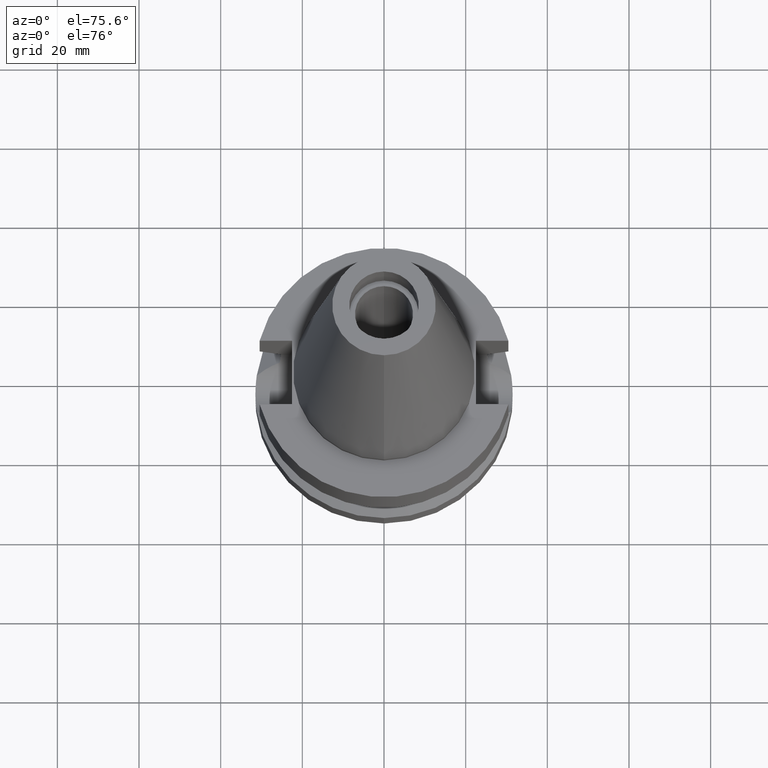
[diagram: clean part render]
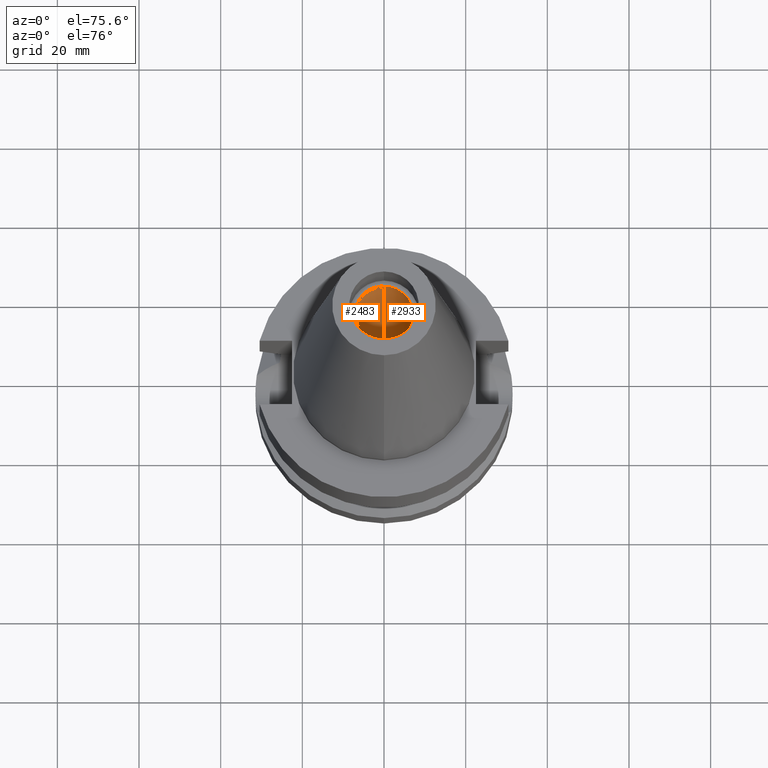
[diagram: same view with one multi-face feature highlighted, each face labeled with its STEP entity id]
A machine part, auxiliary view. The highlighted faces form ONE feature: a constant-radius fillet chain: 2 tangent blend faces with common blend radius 7.1 mm. The faces share edges in the B-rep.
Their STEP definitions:
[1] entity #2483 (Cylinder):
#290 = ORIENTED_EDGE ( 'NONE', *, *, #2376, .T. ) ;
#316 = AXIS2_PLACEMENT_3D ( 'NONE', #1564, #877, #1807 ) ;
#545 = DIRECTION ( 'NONE',  ( 0.0000000000000000000, 0.0000000000000000000, -1.000000000000000000 ) ) ;
#569 = VECTOR ( 'NONE', #2700, 1000.000000000000000 ) ;
#615 = VERTEX_POINT ( 'NONE', #3017 ) ;
#731 = LINE ( 'NONE', #1941, #1014 ) ;
#877 = DIRECTION ( 'NONE',  ( 0.0000000000000000000, 0.0000000000000000000, -1.000000000000000000 ) ) ;
#881 = CARTESIAN_POINT ( 'NONE',  ( 0.0000000000000000000, 0.0000000000000000000, 56.39999999999999858 ) ) ;
#965 = AXIS2_PLACEMENT_3D ( 'NONE', #881, #3049, #2324 ) ;
#1003 = CARTESIAN_POINT ( 'NONE',  ( 0.0000000000000000000, 7.100000000000000533, 0.0000000000000000000 ) ) ;
#1014 = VECTOR ( 'NONE', #2955, 1000.000000000000000 ) ;
#1091 = EDGE_CURVE ( 'NONE', #2235, #615, #731, .T. ) ;
#1235 = EDGE_LOOP ( 'NONE', ( #2120, #1664, #1840, #290 ) ) ;
#1245 = CARTESIAN_POINT ( 'NONE',  ( 0.0000000000000000000, 7.100000000000000533, 0.0000000000000000000 ) ) ;
#1251 = EDGE_CURVE ( 'NONE', #2235, #2464, #1837, .T. ) ;
#1279 = AXIS2_PLACEMENT_3D ( 'NONE', #1298, #545, #1998 ) ;
#1298 = CARTESIAN_POINT ( 'NONE',  ( 0.0000000000000000000, 0.0000000000000000000, 0.0000000000000000000 ) ) ;
#1499 = EDGE_CURVE ( 'NONE', #2511, #615, #1521, .T. ) ;
#1521 = CIRCLE ( 'NONE', #965, 7.100000000000000533 ) ;
#1564 = CARTESIAN_POINT ( 'NONE',  ( 0.0000000000000000000, 0.0000000000000000000, 0.0000000000000000000 ) ) ;
#1664 = ORIENTED_EDGE ( 'NONE', *, *, #1091, .F. ) ;
#1709 = LINE ( 'NONE', #1003, #569 ) ;
#1807 = DIRECTION ( 'NONE',  ( 0.0000000000000000000, -1.000000000000000000, 0.0000000000000000000 ) ) ;
#1837 = CIRCLE ( 'NONE', #1279, 7.100000000000000533 ) ;
#1840 = ORIENTED_EDGE ( 'NONE', *, *, #1251, .T. ) ;
#1941 = CARTESIAN_POINT ( 'NONE',  ( 0.0000000000000000000, -7.100000000000000533, 0.0000000000000000000 ) ) ;
#1998 = DIRECTION ( 'NONE',  ( 0.0000000000000000000, -1.000000000000000000, 0.0000000000000000000 ) ) ;
#2120 = ORIENTED_EDGE ( 'NONE', *, *, #1499, .T. ) ;
#2235 = VERTEX_POINT ( 'NONE', #2379 ) ;
#2324 = DIRECTION ( 'NONE',  ( 0.0000000000000000000, 1.000000000000000000, 0.0000000000000000000 ) ) ;
#2376 = EDGE_CURVE ( 'NONE', #2464, #2511, #1709, .T. ) ;
#2379 = CARTESIAN_POINT ( 'NONE',  ( 0.0000000000000000000, -7.100000000000000533, 0.0000000000000000000 ) ) ;
#2464 = VERTEX_POINT ( 'NONE', #1245 ) ;
#2483 = ADVANCED_FACE ( 'NONE', ( #2803 ), #3063, .F. ) ;
#2511 = VERTEX_POINT ( 'NONE', #2770 ) ;
#2700 = DIRECTION ( 'NONE',  ( 0.0000000000000000000, 0.0000000000000000000, 1.000000000000000000 ) ) ;
#2770 = CARTESIAN_POINT ( 'NONE',  ( 0.0000000000000000000, 7.100000000000000533, 56.39999999999999858 ) ) ;
#2803 = FACE_OUTER_BOUND ( 'NONE', #1235, .T. ) ;
#2955 = DIRECTION ( 'NONE',  ( 0.0000000000000000000, 0.0000000000000000000, 1.000000000000000000 ) ) ;
#3017 = CARTESIAN_POINT ( 'NONE',  ( 0.0000000000000000000, -7.100000000000000533, 56.39999999999999858 ) ) ;
#3049 = DIRECTION ( 'NONE',  ( 0.0000000000000000000, 0.0000000000000000000, 1.000000000000000000 ) ) ;
#3063 = CYLINDRICAL_SURFACE ( 'NONE', #316, 7.100000000000000533 ) ;
[2] entity #2933 (Cylinder):
#51 = CARTESIAN_POINT ( 'NONE',  ( 0.0000000000000000000, 0.0000000000000000000, 56.39999999999999858 ) ) ;
#55 = ORIENTED_EDGE ( 'NONE', *, *, #3046, .T. ) ;
#271 = CIRCLE ( 'NONE', #2593, 7.100000000000000533 ) ;
#367 = AXIS2_PLACEMENT_3D ( 'NONE', #3036, #1357, #1850 ) ;
#400 = FACE_OUTER_BOUND ( 'NONE', #2987, .T. ) ;
#449 = CARTESIAN_POINT ( 'NONE',  ( 0.0000000000000000000, 0.0000000000000000000, 0.0000000000000000000 ) ) ;
#471 = EDGE_CURVE ( 'NONE', #615, #2511, #271, .T. ) ;
#569 = VECTOR ( 'NONE', #2700, 1000.000000000000000 ) ;
#615 = VERTEX_POINT ( 'NONE', #3017 ) ;
#622 = CIRCLE ( 'NONE', #2847, 7.100000000000000533 ) ;
#731 = LINE ( 'NONE', #1941, #1014 ) ;
#1003 = CARTESIAN_POINT ( 'NONE',  ( 0.0000000000000000000, 7.100000000000000533, 0.0000000000000000000 ) ) ;
#1006 = DIRECTION ( 'NONE',  ( 0.0000000000000000000, -1.000000000000000000, 0.0000000000000000000 ) ) ;
#1014 = VECTOR ( 'NONE', #2955, 1000.000000000000000 ) ;
#1091 = EDGE_CURVE ( 'NONE', #2235, #615, #731, .T. ) ;
#1245 = CARTESIAN_POINT ( 'NONE',  ( 0.0000000000000000000, 7.100000000000000533, 0.0000000000000000000 ) ) ;
#1357 = DIRECTION ( 'NONE',  ( 0.0000000000000000000, 0.0000000000000000000, -1.000000000000000000 ) ) ;
#1401 = DIRECTION ( 'NONE',  ( 0.0000000000000000000, 0.0000000000000000000, -1.000000000000000000 ) ) ;
#1407 = ORIENTED_EDGE ( 'NONE', *, *, #2376, .F. ) ;
#1502 = DIRECTION ( 'NONE',  ( 0.0000000000000000000, 0.0000000000000000000, 1.000000000000000000 ) ) ;
#1545 = CYLINDRICAL_SURFACE ( 'NONE', #367, 7.100000000000000533 ) ;
#1709 = LINE ( 'NONE', #1003, #569 ) ;
#1786 = ORIENTED_EDGE ( 'NONE', *, *, #1091, .T. ) ;
#1850 = DIRECTION ( 'NONE',  ( 0.0000000000000000000, -1.000000000000000000, 0.0000000000000000000 ) ) ;
#1927 = DIRECTION ( 'NONE',  ( 0.0000000000000000000, 1.000000000000000000, 0.0000000000000000000 ) ) ;
#1941 = CARTESIAN_POINT ( 'NONE',  ( 0.0000000000000000000, -7.100000000000000533, 0.0000000000000000000 ) ) ;
#2128 = ORIENTED_EDGE ( 'NONE', *, *, #471, .T. ) ;
#2235 = VERTEX_POINT ( 'NONE', #2379 ) ;
#2376 = EDGE_CURVE ( 'NONE', #2464, #2511, #1709, .T. ) ;
#2379 = CARTESIAN_POINT ( 'NONE',  ( 0.0000000000000000000, -7.100000000000000533, 0.0000000000000000000 ) ) ;
#2464 = VERTEX_POINT ( 'NONE', #1245 ) ;
#2511 = VERTEX_POINT ( 'NONE', #2770 ) ;
#2593 = AXIS2_PLACEMENT_3D ( 'NONE', #51, #1502, #1006 ) ;
#2700 = DIRECTION ( 'NONE',  ( 0.0000000000000000000, 0.0000000000000000000, 1.000000000000000000 ) ) ;
#2770 = CARTESIAN_POINT ( 'NONE',  ( 0.0000000000000000000, 7.100000000000000533, 56.39999999999999858 ) ) ;
#2847 = AXIS2_PLACEMENT_3D ( 'NONE', #449, #1401, #1927 ) ;
#2933 = ADVANCED_FACE ( 'NONE', ( #400 ), #1545, .F. ) ;
#2955 = DIRECTION ( 'NONE',  ( 0.0000000000000000000, 0.0000000000000000000, 1.000000000000000000 ) ) ;
#2987 = EDGE_LOOP ( 'NONE', ( #55, #1786, #2128, #1407 ) ) ;
#3017 = CARTESIAN_POINT ( 'NONE',  ( 0.0000000000000000000, -7.100000000000000533, 56.39999999999999858 ) ) ;
#3036 = CARTESIAN_POINT ( 'NONE',  ( 0.0000000000000000000, 0.0000000000000000000, 0.0000000000000000000 ) ) ;
#3046 = EDGE_CURVE ( 'NONE', #2464, #2235, #622, .T. ) ;